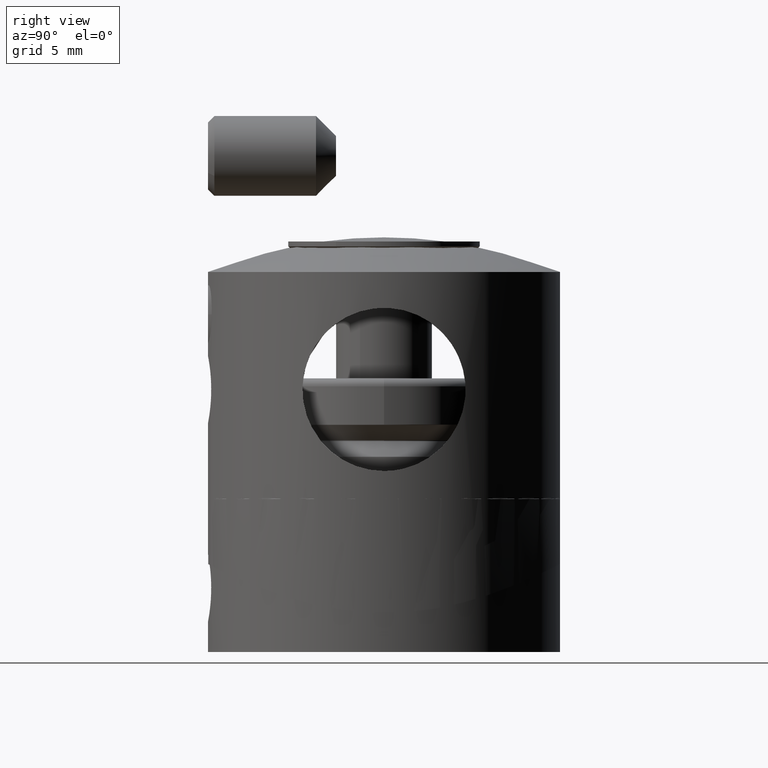
[diagram: clean part render]
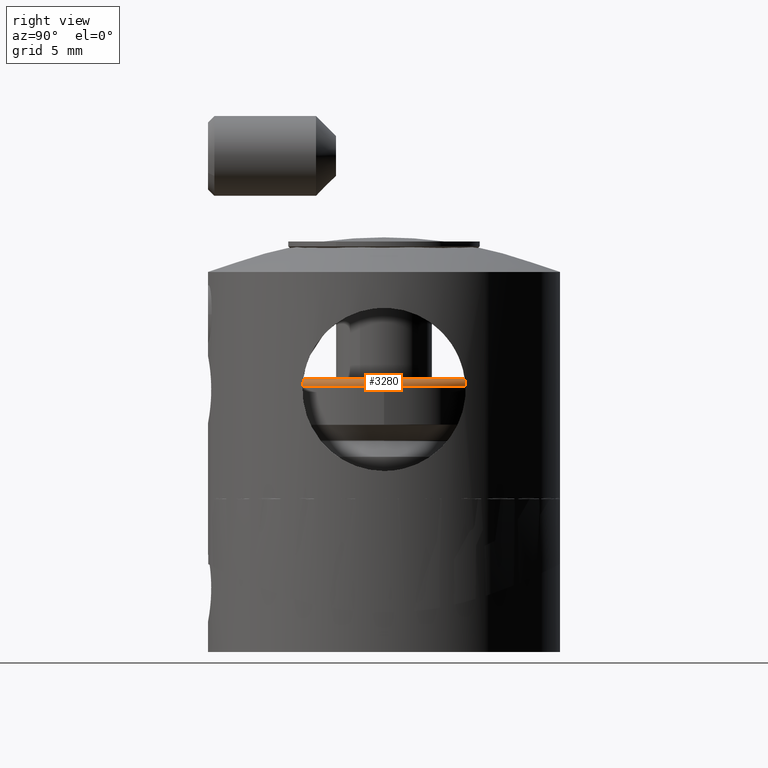
[diagram: same view with one face highlighted and labeled with its STEP entity id]
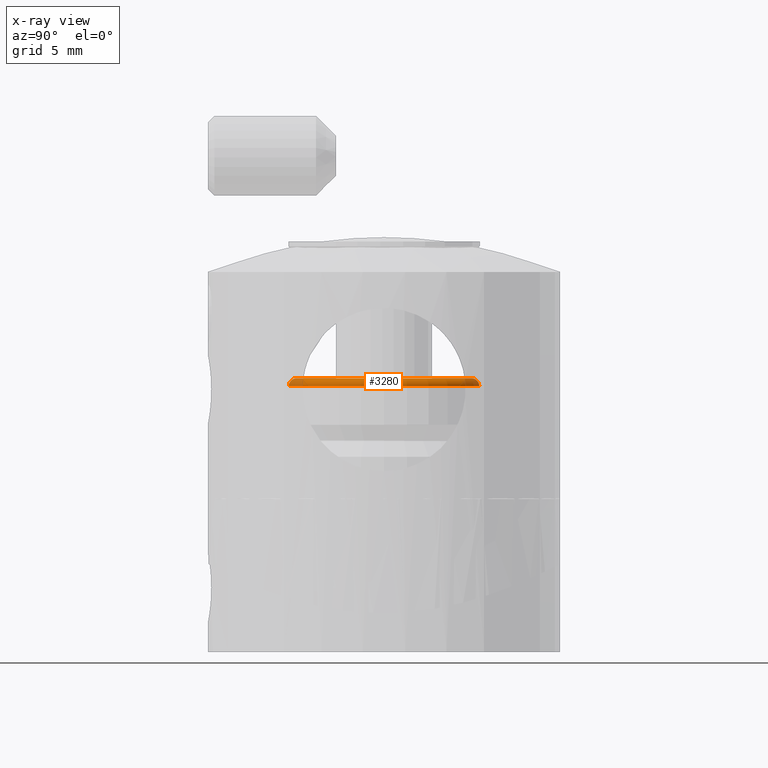
[diagram: x-ray of the same camera — body ghosted, the highlighted face saturated]
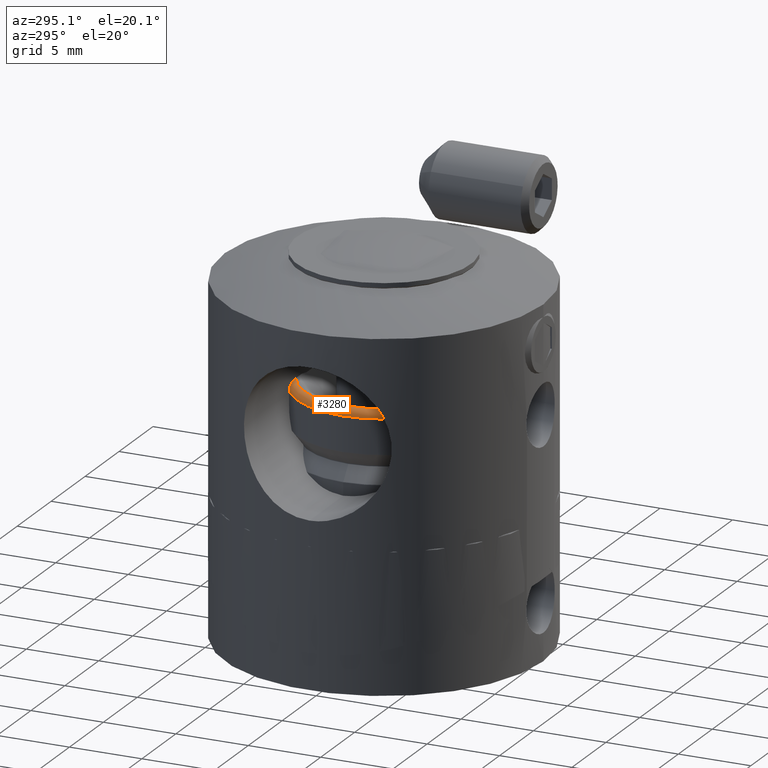
[diagram: same view with one face highlighted and labeled with its STEP entity id]
A machine part, right view. The second image highlights one B-rep face of the part: STEP entity #3280.
The next image is the same camera in x-ray: the body ghosted, the highlighted face saturated — about 13% of this face is hidden behind the body in this view.
A second angle (auxiliary view) of the same face is appended — the face is thin or edge-on in the first view.
In plain terms, the highlighted toroidal blend (fillet) surface has major radius 5.5 mm and minor (blend) radius 0.5 mm.
Its self-contained STEP definition (entity closure, byte-faithful):
#391 = CARTESIAN_POINT ( 'NONE',  ( 5.499999999999996447, 0.000000000000000000, -2.252134521528734102E-17 ) ) ;
#716 = AXIS2_PLACEMENT_3D ( 'NONE', #1126, #1184, #2158 ) ;
#805 = AXIS2_PLACEMENT_3D ( 'NONE', #4214, #1796, #4254 ) ;
#1013 = EDGE_LOOP ( 'NONE', ( #5624 ) ) ;
#1026 = EDGE_CURVE ( 'NONE', #2698, #2698, #3787, .T. ) ;
#1126 = CARTESIAN_POINT ( 'NONE',  ( 0.000000000000000000, 0.000000000000000000, -0.5000000000000035527 ) ) ;
#1184 = DIRECTION ( 'NONE',  ( -0.000000000000000000, -0.000000000000000000, 1.000000000000000000 ) ) ;
#1590 = FACE_OUTER_BOUND ( 'NONE', #3594, .T. ) ;
#1788 = DIRECTION ( 'NONE',  ( -0.000000000000000000, -0.000000000000000000, 1.000000000000000000 ) ) ;
#1796 = DIRECTION ( 'NONE',  ( -0.000000000000000000, -0.000000000000000000, 1.000000000000000000 ) ) ;
#2158 = DIRECTION ( 'NONE',  ( 1.000000000000000000, 0.000000000000000000, 0.000000000000000000 ) ) ;
#2698 = VERTEX_POINT ( 'NONE', #391 ) ;
#2738 = CARTESIAN_POINT ( 'NONE',  ( 0.000000000000000000, 0.000000000000000000, -0.5000000000000001110 ) ) ;
#2765 = CARTESIAN_POINT ( 'NONE',  ( 6.000000000000000000, 0.000000000000000000, -0.5000000000000035527 ) ) ;
#3160 = FACE_OUTER_BOUND ( 'NONE', #1013, .T. ) ;
#3280 = ADVANCED_FACE ( 'NONE', ( #1590, #3160 ), #4281, .T. ) ;
#3512 = VERTEX_POINT ( 'NONE', #2765 ) ;
#3594 = EDGE_LOOP ( 'NONE', ( #6047 ) ) ;
#3787 = CIRCLE ( 'NONE', #805, 5.499999999999996447 ) ;
#4214 = CARTESIAN_POINT ( 'NONE',  ( 0.000000000000000000, 0.000000000000000000, -2.252134521528734102E-17 ) ) ;
#4232 = AXIS2_PLACEMENT_3D ( 'NONE', #2738, #1788, #5592 ) ;
#4254 = DIRECTION ( 'NONE',  ( 1.000000000000000000, 0.000000000000000000, 0.000000000000000000 ) ) ;
#4281 = TOROIDAL_SURFACE ( 'NONE', #4232, 5.500000000000000000, 0.5000000000000002220 ) ;
#4480 = CIRCLE ( 'NONE', #716, 6.000000000000000000 ) ;
#5592 = DIRECTION ( 'NONE',  ( 1.000000000000000000, 0.000000000000000000, 0.000000000000000000 ) ) ;
#5624 = ORIENTED_EDGE ( 'NONE', *, *, #5932, .T. ) ;
#5932 = EDGE_CURVE ( 'NONE', #3512, #3512, #4480, .T. ) ;
#6047 = ORIENTED_EDGE ( 'NONE', *, *, #1026, .F. ) ;